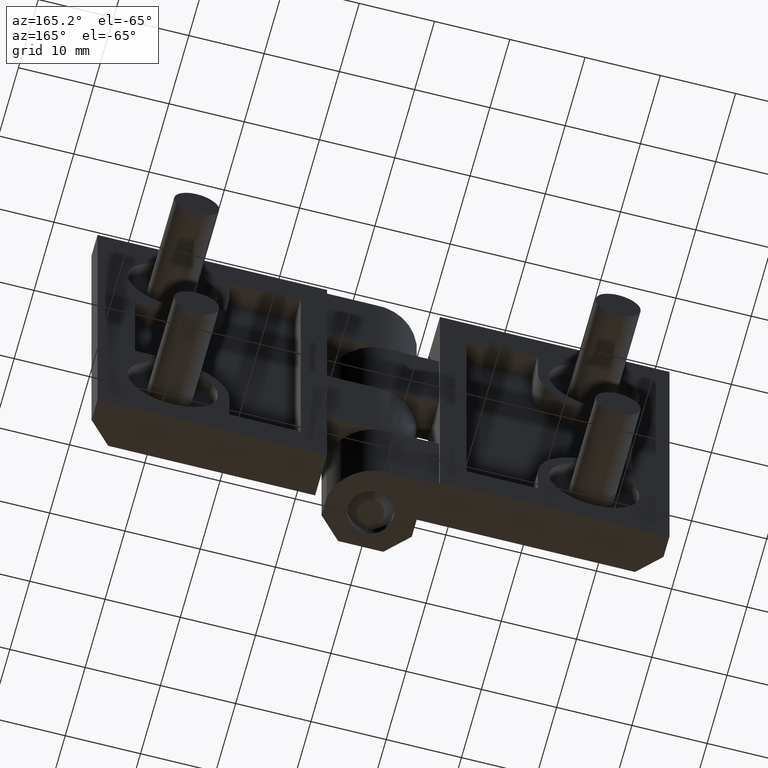
[diagram: clean part render]
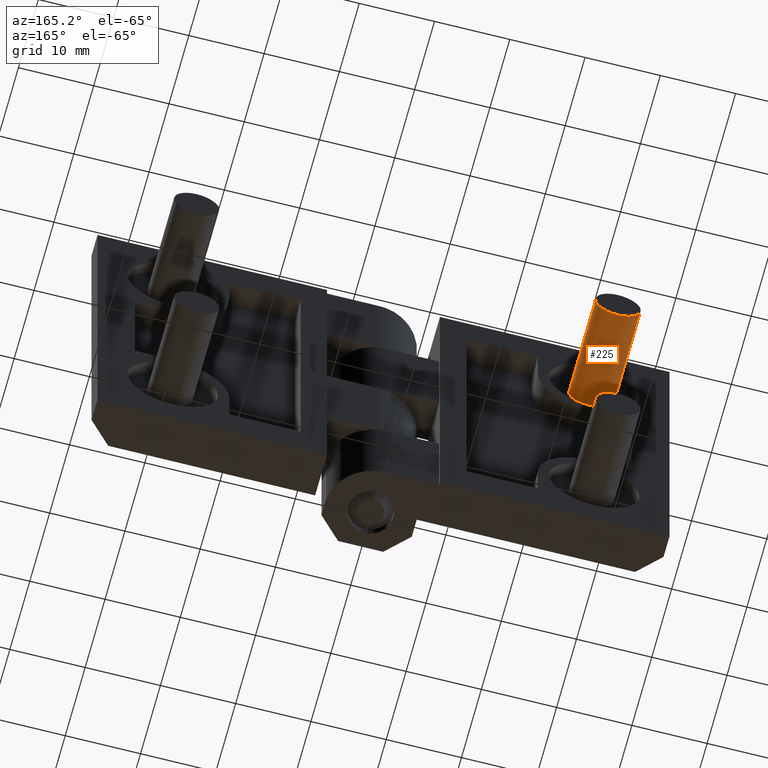
[diagram: same view with one face highlighted and labeled with its STEP entity id]
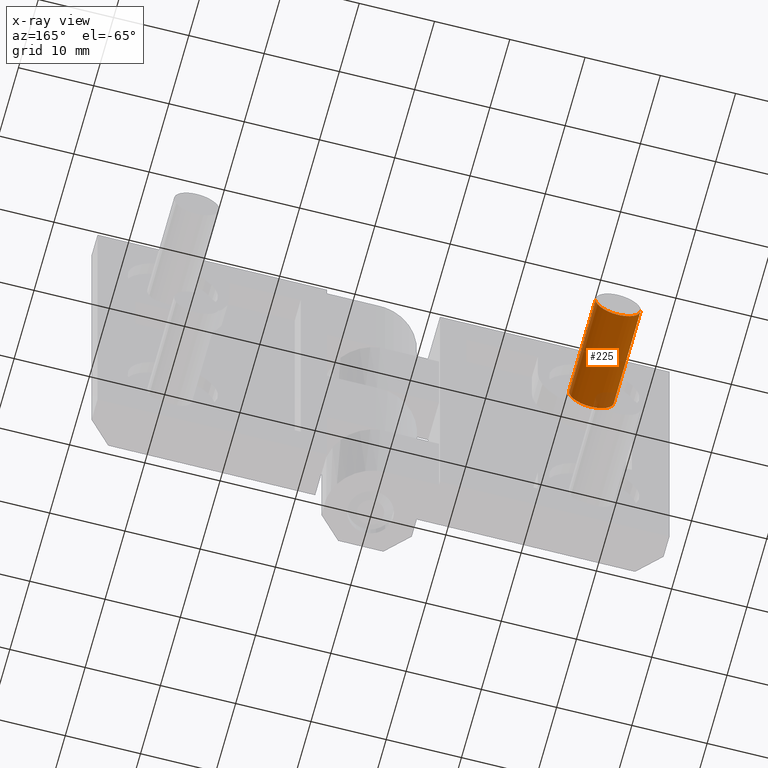
[diagram: x-ray of the same camera — body ghosted, the highlighted face saturated]
A machine part, auxiliary view. The second image highlights one B-rep face of the part: STEP entity #225.
The next image is the same camera in x-ray: the body ghosted, the highlighted face saturated — about 6% of this face is hidden behind the body in this view.
In plain terms, the highlighted face is a freeform B-spline surface patch.
Its self-contained STEP definition (entity closure, byte-faithful):
#64=CARTESIAN_POINT('',(-30.990752001193002,18.500000000000000,10.235377287204649));
#65=VERTEX_POINT('',#64);
#79=CARTESIAN_POINT('',(-30.990752001193002,5.0,10.235377287204649));
#80=VERTEX_POINT('',#79);
#81=CARTESIAN_POINT('',(-30.990752001193002,5.0,10.235377287204649));
#82=CARTESIAN_POINT('',(-30.990752001193002,18.500000000000000,10.235377287204649));
#83=QUASI_UNIFORM_CURVE('',1,(#81,#82),.UNSPECIFIED.,.F.,.U.);
#84=EDGE_CURVE('',#80,#65,#83,.T.);
#101=CARTESIAN_POINT('',(-25.009247998806998,5.0,9.764622712675326));
#102=VERTEX_POINT('',#101);
#118=CARTESIAN_POINT('',(-25.009247998806998,18.500000000000000,9.764622712675324));
#119=VERTEX_POINT('',#118);
#120=CARTESIAN_POINT('',(-25.009247998806998,5.0,9.764622712675326));
#121=CARTESIAN_POINT('',(-25.009247998806998,18.500000000000000,9.764622712675324));
#122=QUASI_UNIFORM_CURVE('',1,(#120,#121),.UNSPECIFIED.,.F.,.U.);
#123=EDGE_CURVE('',#102,#119,#122,.T.);
#143=CARTESIAN_POINT('',(-25.009247998800621,4.662499999999999,9.764622712756452));
#144=CARTESIAN_POINT('',(-25.244625285984149,4.662499999999999,6.773870711557070));
#145=CARTESIAN_POINT('',(-28.235377287183539,4.662499999999999,7.009247998740607));
#146=CARTESIAN_POINT('',(-31.226129288382914,4.662499999999999,7.244625285924143));
#147=CARTESIAN_POINT('',(-30.990752001199379,4.662499999999999,10.235377287123530));
#148=CARTESIAN_POINT('',(-25.009247998800621,18.845937500000009,9.764622712756452));
#149=CARTESIAN_POINT('',(-25.244625285984149,18.845937500000012,6.773870711557070));
#150=CARTESIAN_POINT('',(-28.235377287183539,18.845937500000009,7.009247998740607));
#151=CARTESIAN_POINT('',(-31.226129288382914,18.845937500000012,7.244625285924143));
#152=CARTESIAN_POINT('',(-30.990752001199379,18.845937500000009,10.235377287123530));
#160=(BOUNDED_SURFACE()B_SPLINE_SURFACE(2,1,((#143,#148),(#144,#149),(#145,#150),(#146,#151),(#147,#152)),.UNSPECIFIED.,.F.,.F.,.U.)B_SPLINE_SURFACE_WITH_KNOTS((3,2,3),(2,2),(0.0,4.970562748477140,9.941125496954280),(0.0,14.183437500000011),.UNSPECIFIED.)GEOMETRIC_REPRESENTATION_ITEM()RATIONAL_B_SPLINE_SURFACE(((1.0,1.0),(0.707106781186548,0.707106781186548),(1.0,1.0),(0.707106781186548,0.707106781186548),(1.0,1.0)))REPRESENTATION_ITEM('')SURFACE());
#161=CARTESIAN_POINT('',(-28.0,18.500000000000000,6.999999999939989));
#162=VERTEX_POINT('',#161);
#163=CARTESIAN_POINT('',(-30.990752001193002,18.499999999999996,10.235377287204653));
#164=CARTESIAN_POINT('',(-30.999999999999996,18.500000000000004,10.117870321044503));
#165=CARTESIAN_POINT('',(-31.0,18.500000000000000,9.999999999939989));
#166=CARTESIAN_POINT('',(-31.000000000000007,18.500000000000000,6.999999999939988));
#167=CARTESIAN_POINT('',(-28.0,18.500000000000000,6.999999999939989));
#175=(BOUNDED_CURVE()B_SPLINE_CURVE(2,(#163,#164,#165,#166,#167),.UNSPECIFIED.,.F.,.U.)B_SPLINE_CURVE_WITH_KNOTS((3,2,3),(0.236331300623467,0.250000000000000,0.500000000000000),.UNSPECIFIED.)CURVE()GEOMETRIC_REPRESENTATION_ITEM()RATIONAL_B_SPLINE_CURVE((0.969723356152407,0.983986122570455,1.0,0.707106781186548,1.0))REPRESENTATION_ITEM(''));
#176=EDGE_CURVE('',#65,#162,#175,.T.);
#177=ORIENTED_EDGE('',*,*,#176,.T.);
#178=CARTESIAN_POINT('',(-28.0,18.500000000000000,6.999999999939989));
#179=CARTESIAN_POINT('',(-25.226828525176295,18.500000000000000,6.999999999939989));
#180=CARTESIAN_POINT('',(-25.009247998806998,18.500000000000000,9.764622712675324));
#188=(BOUNDED_CURVE()B_SPLINE_CURVE(2,(#178,#179,#180),.UNSPECIFIED.,.F.,.U.)B_SPLINE_CURVE_WITH_KNOTS((3,3),(0.500000000000000,0.736331300623467),.UNSPECIFIED.)CURVE()GEOMETRIC_REPRESENTATION_ITEM()RATIONAL_B_SPLINE_CURVE((1.0,0.723120658616092,0.969723356152407))REPRESENTATION_ITEM(''));
#189=EDGE_CURVE('',#162,#119,#188,.T.);
#190=ORIENTED_EDGE('',*,*,#189,.T.);
#191=ORIENTED_EDGE('',*,*,#123,.F.);
#192=CARTESIAN_POINT('',(-28.0,5.0,6.999999999939989));
#193=VERTEX_POINT('',#192);
#194=CARTESIAN_POINT('',(-28.0,5.0,6.999999999939989));
#195=CARTESIAN_POINT('',(-25.226828525176295,4.999999999999999,6.999999999939989));
#196=CARTESIAN_POINT('',(-25.009247998806998,5.0,9.764622712675326));
#204=(BOUNDED_CURVE()B_SPLINE_CURVE(2,(#194,#195,#196),.UNSPECIFIED.,.F.,.U.)B_SPLINE_CURVE_WITH_KNOTS((3,3),(0.500000000000000,0.736331300623467),.UNSPECIFIED.)CURVE()GEOMETRIC_REPRESENTATION_ITEM()RATIONAL_B_SPLINE_CURVE((1.0,0.723120658616092,0.969723356152407))REPRESENTATION_ITEM(''));
#205=EDGE_CURVE('',#193,#102,#204,.T.);
#206=ORIENTED_EDGE('',*,*,#205,.F.);
#207=CARTESIAN_POINT('',(-30.990752001193002,5.000000000000001,10.235377287204653));
#208=CARTESIAN_POINT('',(-30.999999999999996,5.0,10.117870321044503));
#209=CARTESIAN_POINT('',(-31.0,5.0,9.999999999939989));
#210=CARTESIAN_POINT('',(-31.000000000000007,5.000000000000001,6.999999999939988));
#211=CARTESIAN_POINT('',(-28.0,5.0,6.999999999939989));
#219=(BOUNDED_CURVE()B_SPLINE_CURVE(2,(#207,#208,#209,#210,#211),.UNSPECIFIED.,.F.,.U.)B_SPLINE_CURVE_WITH_KNOTS((3,2,3),(0.236331300623467,0.250000000000000,0.500000000000000),.UNSPECIFIED.)CURVE()GEOMETRIC_REPRESENTATION_ITEM()RATIONAL_B_SPLINE_CURVE((0.969723356152407,0.983986122570455,1.0,0.707106781186548,1.0))REPRESENTATION_ITEM(''));
#220=EDGE_CURVE('',#80,#193,#219,.T.);
#221=ORIENTED_EDGE('',*,*,#220,.F.);
#222=ORIENTED_EDGE('',*,*,#84,.T.);
#223=EDGE_LOOP('',(#177,#190,#191,#206,#221,#222));
#224=FACE_OUTER_BOUND('',#223,.T.);
#225=ADVANCED_FACE('',(#224),#160,.T.);